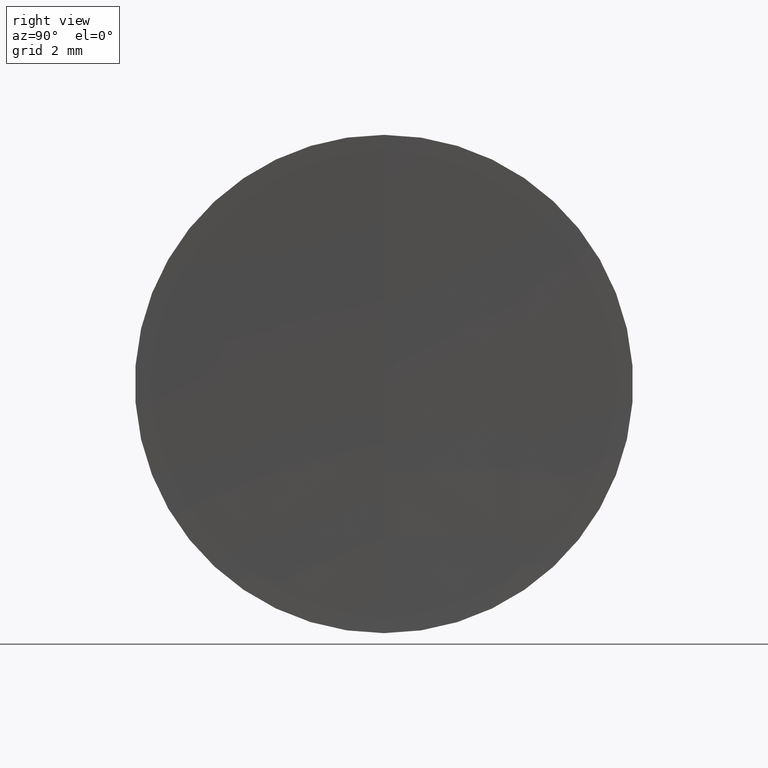
[diagram: clean part render]
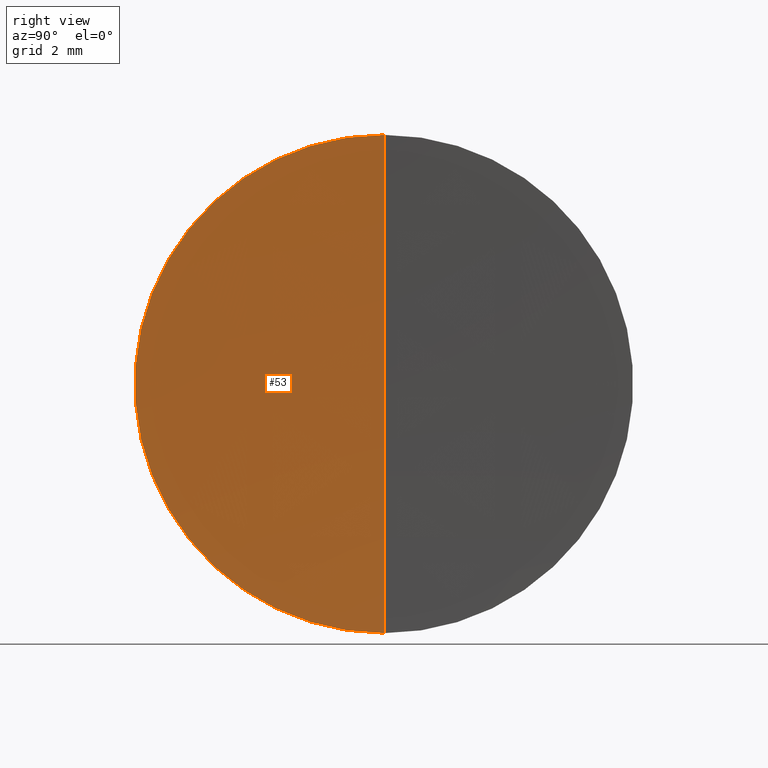
[diagram: same view with one face highlighted and labeled with its STEP entity id]
A machine part, right view. The second image highlights one B-rep face of the part: STEP entity #53.
In plain terms, the highlighted spherical surface has radius 250 mm.
Its self-contained STEP definition (entity closure, byte-faithful):
#5 = VERTEX_POINT ( 'NONE', #310 ) ;
#38 = EDGE_CURVE ( 'NONE', #5, #94, #144, .T. ) ;
#45 = EDGE_CURVE ( 'NONE', #5, #171, #333, .T. ) ;
#48 = ORIENTED_EDGE ( 'NONE', *, *, #280, .F. ) ;
#53 = ADVANCED_FACE ( 'NONE', ( #265 ), #71, .F. ) ;
#56 = DIRECTION ( 'NONE',  ( 0.0000000000000000000, 0.0000000000000000000, 1.000000000000000000 ) ) ;
#71 = SPHERICAL_SURFACE ( 'NONE', #151, 249.9999999999999700 ) ;
#75 = EDGE_LOOP ( 'NONE', ( #48, #260, #101 ) ) ;
#81 = CARTESIAN_POINT ( 'NONE',  ( 289.0896146618997600, 0.0000000000000000000, 0.0000000000000000000 ) ) ;
#92 = AXIS2_PLACEMENT_3D ( 'NONE', #81, #234, #56 ) ;
#94 = VERTEX_POINT ( 'NONE', #250 ) ;
#101 = ORIENTED_EDGE ( 'NONE', *, *, #38, .T. ) ;
#110 = DIRECTION ( 'NONE',  ( -0.0000000000000000000, -1.000000000000000000, -0.0000000000000000000 ) ) ;
#119 = CARTESIAN_POINT ( 'NONE',  ( 289.0896146618997600, 0.0000000000000000000, 6.349999999999906400 ) ) ;
#133 = DIRECTION ( 'NONE',  ( 0.0000000000000000000, 1.000000000000000000, -0.0000000000000000000 ) ) ;
#144 = CIRCLE ( 'NONE', #345, 249.9999999999999700 ) ;
#151 = AXIS2_PLACEMENT_3D ( 'NONE', #256, #110, #210 ) ;
#170 = DIRECTION ( 'NONE',  ( 0.0000000000000000000, 1.224646799147353200E-016, -1.000000000000000000 ) ) ;
#171 = VERTEX_POINT ( 'NONE', #119 ) ;
#192 = CARTESIAN_POINT ( 'NONE',  ( 539.0089566504700500, 0.0000000000000000000, 0.0000000000000000000 ) ) ;
#210 = DIRECTION ( 'NONE',  ( 0.0000000000000000000, 0.0000000000000000000, -1.000000000000000000 ) ) ;
#234 = DIRECTION ( 'NONE',  ( -1.000000000000000000, -0.0000000000000000000, -0.0000000000000000000 ) ) ;
#250 = CARTESIAN_POINT ( 'NONE',  ( 289.0089566504701100, 0.0000000000000000000, -1.530808498934191200E-014 ) ) ;
#256 = CARTESIAN_POINT ( 'NONE',  ( 539.0089566504700500, 0.0000000000000000000, 0.0000000000000000000 ) ) ;
#260 = ORIENTED_EDGE ( 'NONE', *, *, #45, .F. ) ;
#265 = FACE_OUTER_BOUND ( 'NONE', #75, .T. ) ;
#276 = AXIS2_PLACEMENT_3D ( 'NONE', #192, #346, #170 ) ;
#280 = EDGE_CURVE ( 'NONE', #171, #94, #285, .T. ) ;
#282 = DIRECTION ( 'NONE',  ( 0.0000000000000000000, 0.0000000000000000000, 1.000000000000000000 ) ) ;
#285 = CIRCLE ( 'NONE', #276, 249.9999999999999700 ) ;
#307 = CARTESIAN_POINT ( 'NONE',  ( 539.0089566504700500, 0.0000000000000000000, 0.0000000000000000000 ) ) ;
#310 = CARTESIAN_POINT ( 'NONE',  ( 289.0896146618997600, 7.776507174585584700E-016, -6.349999999999906400 ) ) ;
#333 = CIRCLE ( 'NONE', #92, 6.349999999999906400 ) ;
#345 = AXIS2_PLACEMENT_3D ( 'NONE', #307, #133, #282 ) ;
#346 = DIRECTION ( 'NONE',  ( 0.0000000000000000000, -1.000000000000000000, -1.224646799147353200E-016 ) ) ;